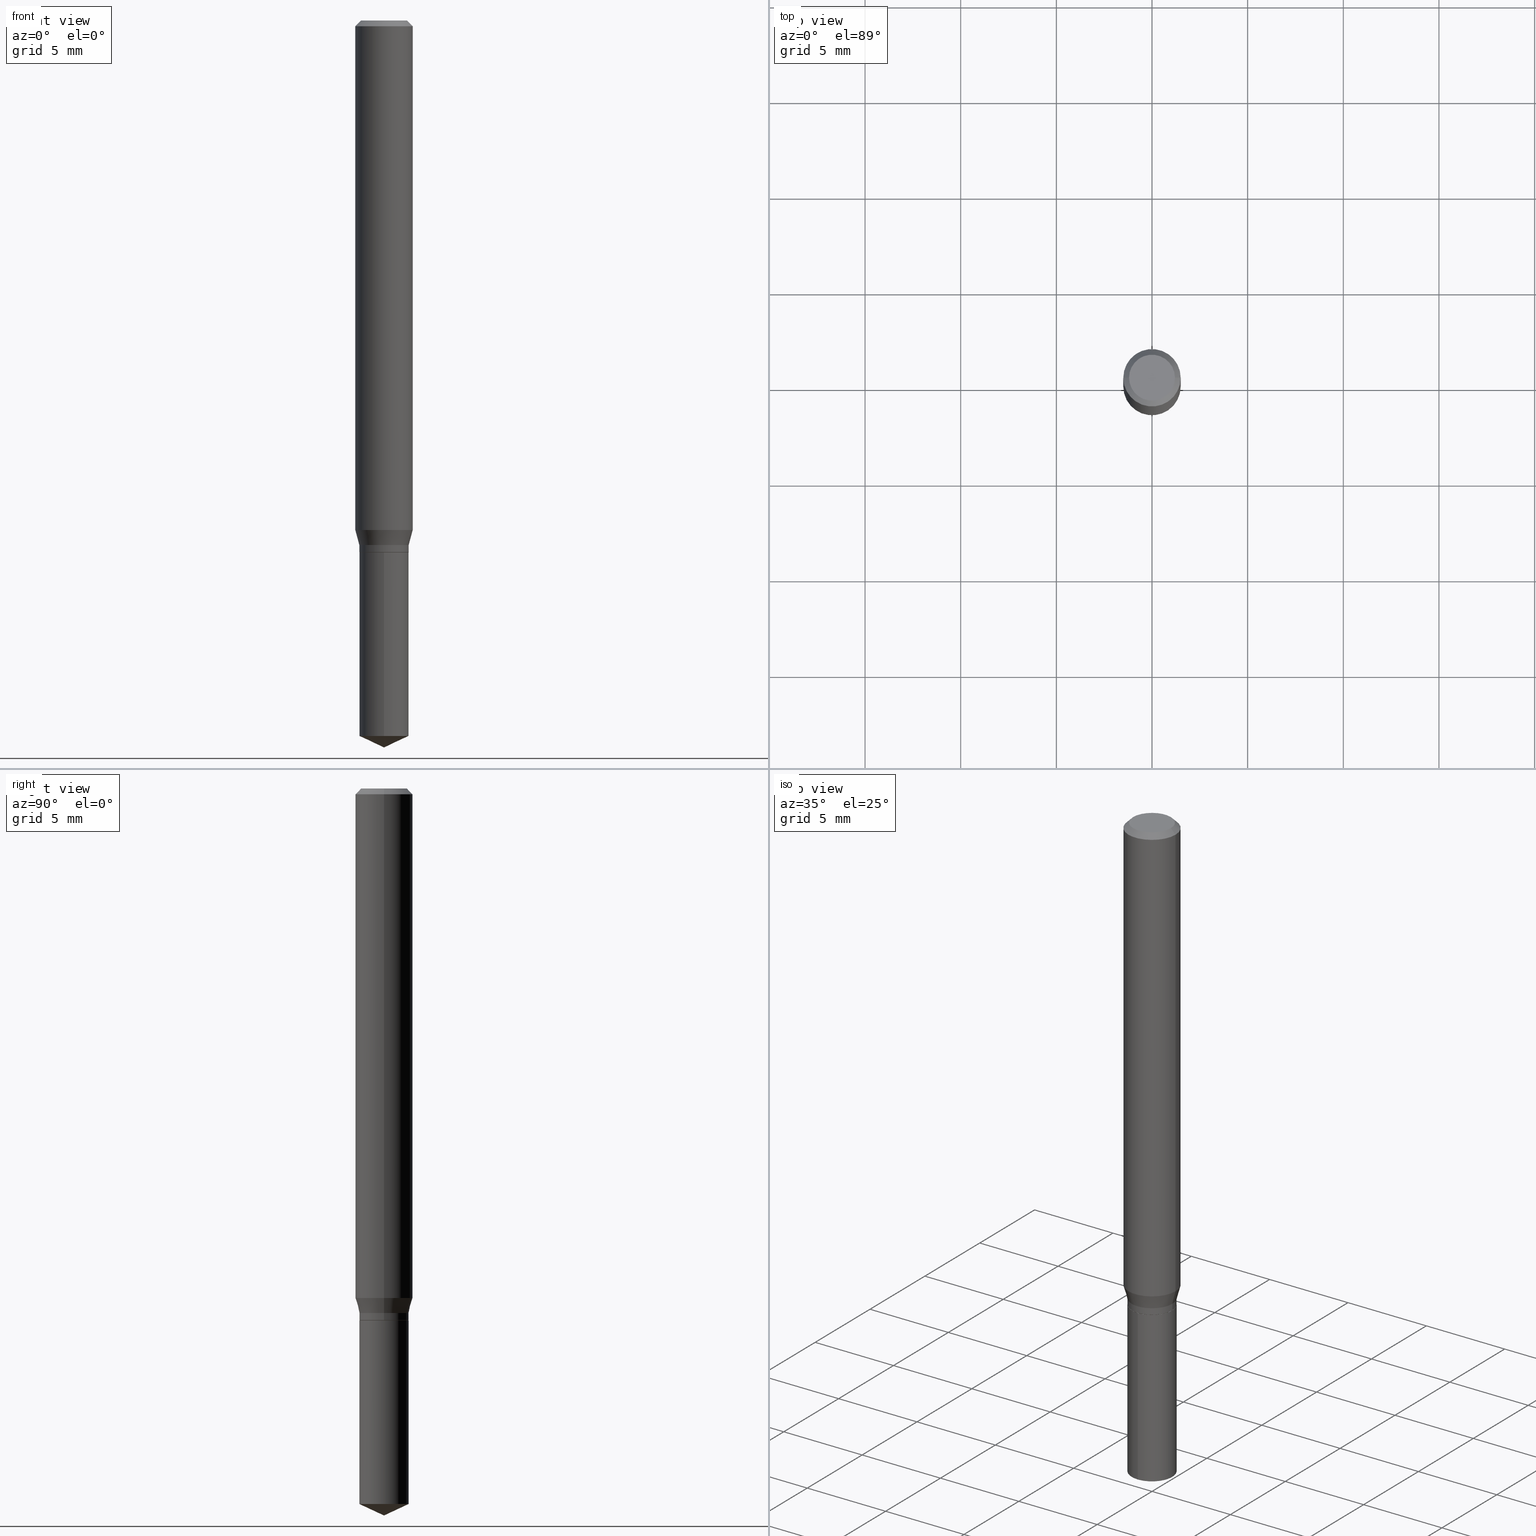
[diagram: canonical four-view strip — front | top / right | iso, engineering-drawing reading convention]
A machine part, canonical four-view strip (front | top / right | iso — engineering-drawing reading convention). The complete STEP part file that produces these views, byte-faithful:
ISO-10303-21;
HEADER;
FILE_DESCRIPTION (( 'STEP AP203' ),
    '1' );
FILE_NAME ('08014.STEP',
    '2024-04-24T08:52:15',
    ( '' ),
    ( '' ),
    'SwSTEP 2.0',
    'SolidWorks 2023',
    '' );
FILE_SCHEMA (( 'CONFIG_CONTROL_DESIGN' ));
ENDSEC;

DATA;
#1 = EDGE_CURVE ( 'NONE', #273, #327, #63, .T. ) ;
#2 = VERTEX_POINT ( 'NONE', #466 ) ;
#3 = FACE_OUTER_BOUND ( 'NONE', #199, .T. ) ;
#4 = CONICAL_SURFACE ( 'NONE', #329, 0.05029999999999999749, 0.7853981633972775267 ) ;
#5 = PERSON_AND_ORGANIZATION_ROLE ( 'classification_officer' ) ;
#6 = AXIS2_PLACEMENT_3D ( 'NONE', #459, #82, #121 ) ;
#7 = EDGE_LOOP ( 'NONE', ( #283, #122, #266, #473 ) ) ;
#8 = PERSON_AND_ORGANIZATION ( #376, #240 ) ;
#9 = ADVANCED_FACE ( 'NONE', ( #133 ), #4, .T. ) ;
#10 = DIRECTION ( 'NONE',  ( 1.000000000000000000, -6.982962677686265133E-15, 0.000000000000000000 ) ) ;
#11 = EDGE_LOOP ( 'NONE', ( #184, #53 ) ) ;
#12 = PERSON_AND_ORGANIZATION ( #376, #240 ) ;
#13 = AXIS2_PLACEMENT_3D ( 'NONE', #174, #480, #139 ) ;
#14 = ORIENTED_EDGE ( 'NONE', *, *, #268, .T. ) ;
#15 = FACE_OUTER_BOUND ( 'NONE', #41, .T. ) ;
#16 = APPROVAL_DATE_TIME ( #245, #145 ) ;
#17 = LINE ( 'NONE', #326, #171 ) ;
#18 = CC_DESIGN_PERSON_AND_ORGANIZATION_ASSIGNMENT ( #291, #440, ( #231 ) ) ;
#19 = COORDINATED_UNIVERSAL_TIME_OFFSET ( 5, 0, .BEHIND. ) ;
#20 = CARTESIAN_POINT ( 'NONE',  ( 2.639394482515617468E-29, -3.768355809013406698E-15, -1.079299999999999926 ) ) ;
#21 = AXIS2_PLACEMENT_3D ( 'NONE', #435, #100, #214 ) ;
#22 = VERTEX_POINT ( 'NONE', #277 ) ;
#23 = CIRCLE ( 'NONE', #218, 0.05079999999999999793 ) ;
#24 = CC_DESIGN_APPROVAL ( #134, ( #231 ) ) ;
#25 = CARTESIAN_POINT ( 'NONE',  ( 2.676565608369632355E-29, -3.821426325363822773E-15, -1.094500000000000028 ) ) ;
#26 = EDGE_CURVE ( 'NONE', #2, #153, #392, .T. ) ;
#27 = ORIENTED_EDGE ( 'NONE', *, *, #212, .F. ) ;
#28 = ORIENTED_EDGE ( 'NONE', *, *, #414, .F. ) ;
#29 = UNCERTAINTY_MEASURE_WITH_UNIT (LENGTH_MEASURE( 1.000000000000000082E-05 ), #115, 'distance_accuracy_value', 'NONE');
#30 = ORIENTED_EDGE ( 'NONE', *, *, #216, .F. ) ;
#31 = AXIS2_PLACEMENT_3D ( 'NONE', #477, #297, #101 ) ;
#32 = DIRECTION ( 'NONE',  ( -2.445468806185136597E-29, 3.491481338843145583E-15, 1.000000000000000000 ) ) ;
#33 = DIRECTION ( 'NONE',  ( -2.445468806185136597E-29, 3.491481338843145583E-15, 1.000000000000000000 ) ) ;
#34 = ADVANCED_FACE ( 'NONE', ( #15 ), #453, .T. ) ;
#35 = CARTESIAN_POINT ( 'NONE',  ( 0.05904999999999999832, -4.535783407291118600E-16, -0.01181000000000007565 ) ) ;
#36 = ORIENTED_EDGE ( 'NONE', *, *, #353, .T. ) ;
#37 = VECTOR ( 'NONE', #383, 39.37007874015748143 ) ;
#38 =( LENGTH_UNIT ( ) NAMED_UNIT ( * ) SI_UNIT ( $, .METRE. ) );
#39 = EDGE_CURVE ( 'NONE', #352, #237, #17, .T. ) ;
#40 = ORIENTED_EDGE ( 'NONE', *, *, #349, .T. ) ;
#41 = EDGE_LOOP ( 'NONE', ( #305, #147, #388 ) ) ;
#42 = FACE_OUTER_BOUND ( 'NONE', #472, .T. ) ;
#43 = PRODUCT_RELATED_PRODUCT_CATEGORY ( 'detail', '', ( #457 ) ) ;
#44 =( NAMED_UNIT ( * ) PLANE_ANGLE_UNIT ( ) SI_UNIT ( $, .RADIAN. ) );
#45 = CLOSED_SHELL ( 'NONE', ( #9, #186, #69, #83, #341, #321, #282, #126, #301, #444, #93, #310 ) ) ;
#46 = AXIS2_PLACEMENT_3D ( 'NONE', #64, #406, #334 ) ;
#47 = DIRECTION ( 'NONE',  ( 1.000000000000000000, -6.982962677686267499E-15, 0.000000000000000000 ) ) ;
#48 = PERSON_AND_ORGANIZATION ( #376, #240 ) ;
#49 = DESIGN_CONTEXT ( 'detailed design', #471, 'design' ) ;
#50 = DIRECTION ( 'NONE',  ( -2.445468806185136597E-29, 3.491481338843145583E-15, 1.000000000000000000 ) ) ;
#51 = VECTOR ( 'NONE', #476, 39.37007874015748143 ) ;
#52 = VECTOR ( 'NONE', #263, 39.37007874015748143 ) ;
#53 = ORIENTED_EDGE ( 'NONE', *, *, #212, .T. ) ;
#54 = EDGE_CURVE ( 'NONE', #425, #146, #163, .T. ) ;
#55 = EDGE_LOOP ( 'NONE', ( #447, #160, #322, #417 ) ) ;
#56 = APPROVAL_ROLE ( '' ) ;
#57 = EDGE_CURVE ( 'NONE', #380, #327, #92, .T. ) ;
#58 = DIRECTION ( 'NONE',  ( 1.000000000000000000, -6.982962677686267499E-15, 0.000000000000000000 ) ) ;
#59 = DIRECTION ( 'NONE',  ( -2.445468806185136597E-29, 3.491481338843145583E-15, 1.000000000000000000 ) ) ;
#60 = CC_DESIGN_PERSON_AND_ORGANIZATION_ASSIGNMENT ( #48, #5, ( #114 ) ) ;
#61 = VECTOR ( 'NONE', #250, 39.37007874015748143 ) ;
#62 = CONICAL_SURFACE ( 'NONE', #162, 0.05029999999999999749, 0.7853981633972775267 ) ;
#63 = LINE ( 'NONE', #432, #51 ) ;
#64 = CARTESIAN_POINT ( 'NONE',  ( 0.000000000000000000, 0.000000000000000000, 0.000000000000000000 ) ) ;
#65 = CARTESIAN_POINT ( 'NONE',  ( 3.600732822747846829E-29, -5.140902884622764989E-15, -1.472411570965726391 ) ) ;
#66 = DIRECTION ( 'NONE',  ( -2.445458899330790108E-29, 3.491495526022433599E-15, 1.000000000000000000 ) ) ;
#67 = VERTEX_POINT ( 'NONE', #393 ) ;
#68 = CARTESIAN_POINT ( 'NONE',  ( -0.05905000000000013016, -3.241279641107575453E-15, -1.048510580837556105 ) ) ;
#69 = ADVANCED_FACE ( 'NONE', ( #478 ), #468, .T. ) ;
#70 = DIRECTION ( 'NONE',  ( 1.000000000000000000, -6.982962677686266711E-15, 0.000000000000000000 ) ) ;
#71 = CONICAL_SURFACE ( 'NONE', #150, 84.42940631927510253, 1.134464013796319337 ) ;
#72 = DIRECTION ( 'NONE',  ( 1.000000000000000000, -6.982962677686267499E-15, 0.000000000000000000 ) ) ;
#73 = LINE ( 'NONE', #149, #345 ) ;
#74 = DIRECTION ( 'NONE',  ( 2.438088387897960049E-29, -3.491481338843145188E-15, -1.000000000000000000 ) ) ;
#75 = LINE ( 'NONE', #111, #52 ) ;
#76 = PRODUCT_DEFINITION_SHAPE ( 'NONE', 'NONE',  #233 ) ;
#77 = ORIENTED_EDGE ( 'NONE', *, *, #451, .F. ) ;
#78 = AXIS2_PLACEMENT_3D ( 'NONE', #319, #59, #401 ) ;
#79 = AXIS2_PLACEMENT_3D ( 'NONE', #439, #485, #364 ) ;
#80 = CARTESIAN_POINT ( 'NONE',  ( 2.676565608369632355E-29, -3.821426325363822773E-15, -1.094500000000000028 ) ) ;
#81 = APPROVAL ( #236, 'UNSPECIFIED' ) ;
#82 = DIRECTION ( 'NONE',  ( -2.445468806185136597E-29, 3.491481338843145583E-15, 1.000000000000000000 ) ) ;
#83 = ADVANCED_FACE ( 'NONE', ( #166 ), #187, .T. ) ;
#84 = VECTOR ( 'NONE', #286, 39.37007874015748854 ) ;
#85 = AXIS2_PLACEMENT_3D ( 'NONE', #304, #420, #340 ) ;
#86 = DATE_AND_TIME ( #311, #190 ) ;
#87 = VECTOR ( 'NONE', #141, 39.37007874015748854 ) ;
#88 = ORIENTED_EDGE ( 'NONE', *, *, #220, .T. ) ;
#89 = DIRECTION ( 'NONE',  ( 1.000000000000000000, 0.000000000000000000, 0.000000000000000000 ) ) ;
#90 = CALENDAR_DATE ( 2024, 24, 4 ) ;
#91 = CARTESIAN_POINT ( 'NONE',  ( 0.04724000000000000421, -3.852183633974369345E-16, -3.380025165621689721E-19 ) ) ;
#92 = LINE ( 'NONE', #202, #238 ) ;
#93 = ADVANCED_FACE ( 'NONE', ( #399 ), #355, .F. ) ;
#94 = CARTESIAN_POINT ( 'NONE',  ( 0.05905000000000006771, -4.123439461173745257E-16, 2.879382386107503723E-30 ) ) ;
#95 = APPLICATION_PROTOCOL_DEFINITION ( 'international standard', 'config_control_design', 1994, #284 ) ;
#96 =( GEOMETRIC_REPRESENTATION_CONTEXT ( 3 ) GLOBAL_UNCERTAINTY_ASSIGNED_CONTEXT ( ( #29 ) ) GLOBAL_UNIT_ASSIGNED_CONTEXT ( ( #115, #44, #416 ) ) REPRESENTATION_CONTEXT ( 'NONE', 'WORKASPACE' ) );
#97 = CARTESIAN_POINT ( 'NONE',  ( 2.676565608369632355E-29, -3.821426325363822773E-15, -1.094500000000000028 ) ) ;
#98 = CALENDAR_DATE ( 2024, 24, 4 ) ;
#99 = EDGE_CURVE ( 'NONE', #237, #67, #315, .T. ) ;
#100 = DIRECTION ( 'NONE',  ( -2.445468806185136597E-29, 3.491481338843145583E-15, 1.000000000000000000 ) ) ;
#101 = DIRECTION ( 'NONE',  ( -6.982962677686265922E-15, -1.000000000000000000, 2.688826765417582082E-15 ) ) ;
#102 = FACE_OUTER_BOUND ( 'NONE', #475, .T. ) ;
#103 = DIRECTION ( 'NONE',  ( 1.000000000000000000, -6.982962677686267499E-15, 0.000000000000000000 ) ) ;
#104 = AXIS2_PLACEMENT_3D ( 'NONE', #374, #455, #228 ) ;
#105 = APPROVAL_PERSON_ORGANIZATION ( #462, #81, #204 ) ;
#106 = FACE_OUTER_BOUND ( 'NONE', #55, .T. ) ;
#107 = ORIENTED_EDGE ( 'NONE', *, *, #99, .T. ) ;
#108 = CARTESIAN_POINT ( 'NONE',  ( 3.658651059288794515E-29, -5.223626456482161457E-15, -1.496099999999999985 ) ) ;
#109 = EDGE_CURVE ( 'NONE', #22, #2, #438, .T. ) ;
#110 = LINE ( 'NONE', #260, #307 ) ;
#111 = CARTESIAN_POINT ( 'NONE',  ( -0.05029999999999999749, -3.464023329276492693E-15, -1.094500000000000028 ) ) ;
#112 = EDGE_LOOP ( 'NONE', ( #40, #107, #28, #366 ) ) ;
#113 = AXIS2_PLACEMENT_3D ( 'NONE', #209, #427, #450 ) ;
#114 = SECURITY_CLASSIFICATION ( '', '', #208 ) ;
#115 =( CONVERSION_BASED_UNIT ( 'INCH', #123 ) LENGTH_UNIT ( ) NAMED_UNIT ( #299 ) );
#116 = CARTESIAN_POINT ( 'NONE',  ( -0.05079999999999999793, -3.433062487087773006E-15, -1.079299999999999926 ) ) ;
#117 = EDGE_CURVE ( 'NONE', #22, #195, #217, .T. ) ;
#118 = PLANE ( 'NONE',  #196 ) ;
#119 = EDGE_LOOP ( 'NONE', ( #27, #428, #130, #350 ) ) ;
#120 = CIRCLE ( 'NONE', #346, 0.05905000000000013016 ) ;
#121 = DIRECTION ( 'NONE',  ( 1.000000000000000000, -6.982962677686266711E-15, 0.000000000000000000 ) ) ;
#122 = ORIENTED_EDGE ( 'NONE', *, *, #170, .F. ) ;
#123 = LENGTH_MEASURE_WITH_UNIT ( LENGTH_MEASURE( 0.02539999999999999897 ), #38 );
#124 = CARTESIAN_POINT ( 'NONE',  ( -3.547345040264262045E-16, -0.05080000000000513272, -1.472411570965725947 ) ) ;
#125 = DIRECTION ( 'NONE',  ( -6.982962677686268288E-15, -1.000000000000000000, 3.520397390770421921E-15 ) ) ;
#126 = ADVANCED_FACE ( 'NONE', ( #102 ), #252, .T. ) ;
#127 = APPROVAL_STATUS ( 'not_yet_approved' ) ;
#128 = DIRECTION ( 'NONE',  ( -2.445468806185136877E-29, 3.491481338843145188E-15, 1.000000000000000000 ) ) ;
#129 = ORIENTED_EDGE ( 'NONE', *, *, #99, .F. ) ;
#130 = ORIENTED_EDGE ( 'NONE', *, *, #407, .T. ) ;
#131 = DATE_AND_TIME ( #469, #331 ) ;
#132 = EDGE_CURVE ( 'NONE', #276, #146, #338, .T. ) ;
#133 = FACE_OUTER_BOUND ( 'NONE', #415, .T. ) ;
#134 = APPROVAL ( #429, 'UNSPECIFIED' ) ;
#135 = VECTOR ( 'NONE', #343, 39.37007874015748143 ) ;
#136 = CARTESIAN_POINT ( 'NONE',  ( -9.261924752013118283E-28, 1.322368428517963298E-13, 37.87397874015748300 ) ) ;
#137 = DIRECTION ( 'NONE',  ( 2.445468806185136597E-29, -3.491481338843145583E-15, -1.000000000000000000 ) ) ;
#138 = ORIENTED_EDGE ( 'NONE', *, *, #384, .F. ) ;
#139 = DIRECTION ( 'NONE',  ( 1.000000000000000000, -6.982962677686266711E-15, 4.876176775795935793E-29 ) ) ;
#140 = ORIENTED_EDGE ( 'NONE', *, *, #353, .F. ) ;
#141 = DIRECTION ( 'NONE',  ( -0.2588190451025211281, 5.211531920934547886E-15, 0.9659258262890679791 ) ) ;
#142 = AXIS2_PLACEMENT_3D ( 'NONE', #136, #246, #125 ) ;
#143 = CIRCLE ( 'NONE', #419, 0.05029999999999999749 ) ;
#144 = VERTEX_POINT ( 'NONE', #482 ) ;
#145 = APPROVAL ( #127, 'UNSPECIFIED' ) ;
#146 = VERTEX_POINT ( 'NONE', #298 ) ;
#147 = ORIENTED_EDGE ( 'NONE', *, *, #39, .T. ) ;
#148 = EDGE_CURVE ( 'NONE', #229, #144, #110, .T. ) ;
#149 = CARTESIAN_POINT ( 'NONE',  ( 0.05904999999999999832, -4.463468013801466955E-16, -0.01181000000000007565 ) ) ;
#150 = AXIS2_PLACEMENT_3D ( 'NONE', #271, #418, #191 ) ;
#151 = VERTEX_POINT ( 'NONE', #257 ) ;
#152 = EDGE_LOOP ( 'NONE', ( #88, #461, #405, #206 ) ) ;
#153 = VERTEX_POINT ( 'NONE', #35 ) ;
#154 = AXIS2_PLACEMENT_3D ( 'NONE', #408, #409, #70 ) ;
#155 = CIRCLE ( 'NONE', #6, 0.05904999999999999832 ) ;
#156 = CARTESIAN_POINT ( 'NONE',  ( 4.132873053354867254E-48, -5.900647395337818946E-34, -1.690012582823346072E-19 ) ) ;
#157 = SHAPE_DEFINITION_REPRESENTATION ( #76, #222 ) ;
#158 = DIRECTION ( 'NONE',  ( 1.000000000000000000, -6.982962677686266711E-15, 4.876185090822587894E-29 ) ) ;
#159 = EDGE_CURVE ( 'NONE', #327, #153, #368, .T. ) ;
#160 = ORIENTED_EDGE ( 'NONE', *, *, #451, .T. ) ;
#161 = CLOSED_SHELL ( 'NONE', ( #239, #34, #391, #272, #487 ) ) ;
#162 = AXIS2_PLACEMENT_3D ( 'NONE', #25, #32, #251 ) ;
#163 = LINE ( 'NONE', #207, #442 ) ;
#164 = PERSON_AND_ORGANIZATION ( #376, #240 ) ;
#165 = EDGE_LOOP ( 'NONE', ( #484, #77 ) ) ;
#166 = FACE_OUTER_BOUND ( 'NONE', #479, .T. ) ;
#167 = EDGE_CURVE ( 'NONE', #230, #153, #73, .T. ) ;
#168 = CARTESIAN_POINT ( 'NONE',  ( 2.564099918393302910E-29, -3.660855126573914946E-15, -1.048510580837556105 ) ) ;
#169 = DIRECTION ( 'NONE',  ( 1.000000000000000000, -6.982962677686265922E-15, 4.876176775795935793E-29 ) ) ;
#170 = EDGE_CURVE ( 'NONE', #380, #230, #431, .T. ) ;
#171 = VECTOR ( 'NONE', #211, 39.37007874015748143 ) ;
#172 = AXIS2_PLACEMENT_3D ( 'NONE', #356, #241, #89 ) ;
#173 = DIRECTION ( 'NONE',  ( -2.445468806185136597E-29, 3.491481338843145583E-15, 1.000000000000000000 ) ) ;
#174 = CARTESIAN_POINT ( 'NONE',  ( 0.000000000000000000, 0.000000000000000000, 0.000000000000000000 ) ) ;
#175 = ORIENTED_EDGE ( 'NONE', *, *, #109, .T. ) ;
#176 = ORIENTED_EDGE ( 'NONE', *, *, #109, .F. ) ;
#177 = FACE_OUTER_BOUND ( 'NONE', #465, .T. ) ;
#178 = EDGE_CURVE ( 'NONE', #151, #276, #75, .T. ) ;
#179 = DIRECTION ( 'NONE',  ( -2.445468806185136597E-29, 3.491481338843145583E-15, 1.000000000000000000 ) ) ;
#180 = ORIENTED_EDGE ( 'NONE', *, *, #148, .T. ) ;
#181 = DIRECTION ( 'NONE',  ( -2.445458899330790108E-29, 3.491495526022433205E-15, 1.000000000000000000 ) ) ;
#182 = EDGE_LOOP ( 'NONE', ( #294, #396, #335, #215 ) ) ;
#183 = CARTESIAN_POINT ( 'NONE',  ( 2.639394482515617468E-29, -3.768355809013406698E-15, -1.079299999999999926 ) ) ;
#184 = ORIENTED_EDGE ( 'NONE', *, *, #170, .T. ) ;
#185 = EDGE_CURVE ( 'NONE', #146, #276, #23, .T. ) ;
#186 = ADVANCED_FACE ( 'NONE', ( #303 ), #254, .T. ) ;
#187 = CONICAL_SURFACE ( 'NONE', #386, 0.05079999999999999793, 0.2617993877991498519 ) ;
#188 = CIRCLE ( 'NONE', #330, 0.05905000000000013016 ) ;
#189 = ORIENTED_EDGE ( 'NONE', *, *, #259, .T. ) ;
#190 = LOCAL_TIME ( 4, 52, 15.00000000000000000, #312 ) ;
#191 = DIRECTION ( 'NONE',  ( -6.982962677686268288E-15, -1.000000000000000000, 3.520397390770421921E-15 ) ) ;
#192 = ORIENTED_EDGE ( 'NONE', *, *, #117, .T. ) ;
#193 = CARTESIAN_POINT ( 'NONE',  ( -0.04724000000000000421, 3.504923541997677355E-16, -3.380025165670481712E-19 ) ) ;
#194 = CC_DESIGN_PERSON_AND_ORGANIZATION_ASSIGNMENT ( #197, #348, ( #231 ) ) ;
#195 = VERTEX_POINT ( 'NONE', #116 ) ;
#196 = AXIS2_PLACEMENT_3D ( 'NONE', #489, #235, #379 ) ;
#197 = PERSON_AND_ORGANIZATION ( #376, #240 ) ;
#198 = COORDINATED_UNIVERSAL_TIME_OFFSET ( 5, 0, .BEHIND. ) ;
#199 = EDGE_LOOP ( 'NONE', ( #382, #410, #385 ) ) ;
#200 = PERSON_AND_ORGANIZATION_ROLE ( 'design_owner' ) ;
#201 = ORIENTED_EDGE ( 'NONE', *, *, #470, .T. ) ;
#202 = CARTESIAN_POINT ( 'NONE',  ( -0.05904999999999999832, 3.711095515056362547E-16, -0.01181000000000007565 ) ) ;
#203 = VECTOR ( 'NONE', #323, 39.37007874015748143 ) ;
#204 = APPROVAL_ROLE ( '' ) ;
#205 = LOCAL_TIME ( 4, 52, 15.00000000000000000, #434 ) ;
#206 = ORIENTED_EDGE ( 'NONE', *, *, #26, .F. ) ;
#207 = CARTESIAN_POINT ( 'NONE',  ( 0.05029999999999999749, -4.172669348051441913E-15, -1.094500000000000028 ) ) ;
#208 = SECURITY_CLASSIFICATION_LEVEL ( 'unclassified' ) ;
#209 = CARTESIAN_POINT ( 'NONE',  ( 2.676565608369631794E-29, -3.821426325363822773E-15, -1.094499999999999806 ) ) ;
#210 = ORIENTED_EDGE ( 'NONE', *, *, #26, .T. ) ;
#211 = DIRECTION ( 'NONE',  ( 6.439704144417040608E-15, 0.9063077870366536004, 0.4226182617406916142 ) ) ;
#212 = EDGE_CURVE ( 'NONE', #230, #380, #224, .T. ) ;
#213 = DIRECTION ( 'NONE',  ( -2.445468806185136597E-29, 3.491481338843145583E-15, 1.000000000000000000 ) ) ;
#214 = DIRECTION ( 'NONE',  ( 1.000000000000000000, -6.982962677686267499E-15, 0.000000000000000000 ) ) ;
#215 = ORIENTED_EDGE ( 'NONE', *, *, #470, .F. ) ;
#216 = EDGE_CURVE ( 'NONE', #195, #22, #394, .T. ) ;
#217 = CIRCLE ( 'NONE', #21, 0.05079999999999999793 ) ;
#218 = AXIS2_PLACEMENT_3D ( 'NONE', #226, #413, #264 ) ;
#219 = DIRECTION ( 'NONE',  ( 1.000000000000000000, -6.982962677686267499E-15, 0.000000000000000000 ) ) ;
#220 = EDGE_CURVE ( 'NONE', #2, #273, #188, .T. ) ;
#221 = ORIENTED_EDGE ( 'NONE', *, *, #414, .T. ) ;
#222 = ADVANCED_BREP_SHAPE_REPRESENTATION ( '08014', ( #423, #424, #172 ), #96 ) ;
#223 = AXIS2_PLACEMENT_3D ( 'NONE', #328, #33, #452 ) ;
#224 = CIRCLE ( 'NONE', #302, 0.04724000000000000421 ) ;
#225 = EDGE_CURVE ( 'NONE', #276, #195, #467, .T. ) ;
#226 = CARTESIAN_POINT ( 'NONE',  ( 2.675342873966538993E-29, -3.819680584694400481E-15, -1.093999999999999861 ) ) ;
#227 = CARTESIAN_POINT ( 'NONE',  ( 3.658651059288795076E-29, -5.223626456482161457E-15, -1.496099999999999985 ) ) ;
#228 = DIRECTION ( 'NONE',  ( -1.000000000000000000, 6.982962677686266711E-15, 0.000000000000000000 ) ) ;
#229 = VERTEX_POINT ( 'NONE', #124 ) ;
#230 = VERTEX_POINT ( 'NONE', #91 ) ;
#231 = PRODUCT_DEFINITION_FORMATION_WITH_SPECIFIED_SOURCE ( 'ANY', '', #457, .NOT_KNOWN. ) ;
#232 = DIRECTION ( 'NONE',  ( 1.000000000000000000, -6.982962677686265133E-15, 0.000000000000000000 ) ) ;
#233 = PRODUCT_DEFINITION ( 'UNKNOWN', '', #231, #49 ) ;
#234 = LINE ( 'NONE', #265, #37 ) ;
#235 = DIRECTION ( 'NONE',  ( 2.445458899330789267E-29, -3.491495526022433599E-15, -1.000000000000000000 ) ) ;
#236 = APPROVAL_STATUS ( 'not_yet_approved' ) ;
#237 = VERTEX_POINT ( 'NONE', #243 ) ;
#238 = VECTOR ( 'NONE', #244, 39.37007874015748143 ) ;
#239 = ADVANCED_FACE ( 'NONE', ( #430 ), #279, .T. ) ;
#240 = ORGANIZATION ( 'UNSPECIFIED', 'UNSPECIFIED', '' ) ;
#241 = DIRECTION ( 'NONE',  ( 0.000000000000000000, 0.000000000000000000, 1.000000000000000000 ) ) ;
#242 = APPROVAL_DATE_TIME ( #390, #81 ) ;
#243 = CARTESIAN_POINT ( 'NONE',  ( 3.609557097661668715E-16, 0.05079999999999484234, -1.472411570965726613 ) ) ;
#244 = DIRECTION ( 'NONE',  ( -0.7071067811865452413, 2.468850131082233000E-15, -0.7071067811865497932 ) ) ;
#245 = DATE_AND_TIME ( #426, #433 ) ;
#246 = DIRECTION ( 'NONE',  ( -2.445458899330790108E-29, 3.491495526022433205E-15, 1.000000000000000000 ) ) ;
#247 = CC_DESIGN_DATE_AND_TIME_ASSIGNMENT ( #86, #275, ( #114 ) ) ;
#248 = ORIENTED_EDGE ( 'NONE', *, *, #54, .F. ) ;
#249 = DATE_AND_TIME ( #98, #205 ) ;
#250 = DIRECTION ( 'NONE',  ( -2.445468806185136877E-29, 3.491481338843145188E-15, 1.000000000000000000 ) ) ;
#251 = DIRECTION ( 'NONE',  ( 1.000000000000000000, -6.982962677686267499E-15, 0.000000000000000000 ) ) ;
#252 = CYLINDRICAL_SURFACE ( 'NONE', #354, 0.05905000000000006771 ) ;
#253 = CARTESIAN_POINT ( 'NONE',  ( -0.05904999999999999832, -1.431469275126486055E-15, -0.01181000000000007565 ) ) ;
#254 = CONICAL_SURFACE ( 'NONE', #104, 0.05904999999999999832, 0.7853981633974450594 ) ;
#255 = ORIENTED_EDGE ( 'NONE', *, *, #185, .F. ) ;
#256 = CYLINDRICAL_SURFACE ( 'NONE', #46, 0.05079999999999999793 ) ;
#257 = CARTESIAN_POINT ( 'NONE',  ( -0.05029999999999999749, -3.461374102102381492E-15, -1.094500000000000028 ) ) ;
#258 = LINE ( 'NONE', #448, #87 ) ;
#259 = EDGE_CURVE ( 'NONE', #237, #229, #293, .T. ) ;
#260 = CARTESIAN_POINT ( 'NONE',  ( -3.547345040264355229E-16, -0.05080000000000382127, -1.094499999999999806 ) ) ;
#261 = ORIENTED_EDGE ( 'NONE', *, *, #384, .T. ) ;
#262 = FACE_OUTER_BOUND ( 'NONE', #378, .T. ) ;
#263 = DIRECTION ( 'NONE',  ( -0.7071067811864267805, 7.493145998869918709E-15, 0.7071067811866682540 ) ) ;
#264 = DIRECTION ( 'NONE',  ( 1.000000000000000000, -6.982962677686267499E-15, 0.000000000000000000 ) ) ;
#265 = CARTESIAN_POINT ( 'NONE',  ( 0.05079999999999999793, -3.547345040264623442E-16, 2.477097802104335321E-30 ) ) ;
#266 = ORIENTED_EDGE ( 'NONE', *, *, #57, .T. ) ;
#267 = DIRECTION ( 'NONE',  ( -2.445468806185136597E-29, 3.491481338843145583E-15, 1.000000000000000000 ) ) ;
#268 = EDGE_CURVE ( 'NONE', #195, #273, #258, .T. ) ;
#269 = CIRCLE ( 'NONE', #362, 0.05079999999999999793 ) ;
#270 = ORIENTED_EDGE ( 'NONE', *, *, #268, .F. ) ;
#271 = CARTESIAN_POINT ( 'NONE',  ( -9.261924752013118283E-28, 1.322368428517963298E-13, 37.87397874015748300 ) ) ;
#272 = ADVANCED_FACE ( 'NONE', ( #177 ), #367, .T. ) ;
#273 = VERTEX_POINT ( 'NONE', #68 ) ;
#274 = AXIS2_PLACEMENT_3D ( 'NONE', #183, #292, #103 ) ;
#275 = DATE_TIME_ROLE ( 'classification_date' ) ;
#276 = VERTEX_POINT ( 'NONE', #481 ) ;
#277 = CARTESIAN_POINT ( 'NONE',  ( 0.05079999999999999793, -4.123090313039868845E-15, -1.079299999999999926 ) ) ;
#278 = COORDINATED_UNIVERSAL_TIME_OFFSET ( 5, 0, .BEHIND. ) ;
#279 = CYLINDRICAL_SURFACE ( 'NONE', #113, 0.05079999999999999793 ) ;
#280 = CARTESIAN_POINT ( 'NONE',  ( 3.609557097661576024E-16, 0.05079999999999617460, -1.094500000000000028 ) ) ;
#281 = DATE_TIME_ROLE ( 'creation_date' ) ;
#282 = ADVANCED_FACE ( 'NONE', ( #262 ), #488, .T. ) ;
#283 = ORIENTED_EDGE ( 'NONE', *, *, #167, .F. ) ;
#284 = APPLICATION_CONTEXT ( 'configuration controlled 3d designs of mechanical parts and assemblies' ) ;
#285 = CIRCLE ( 'NONE', #464, 0.05029999999999999749 ) ;
#286 = DIRECTION ( 'NONE',  ( 0.2588190451025211281, 1.565188264969622954E-15, 0.9659258262890679791 ) ) ;
#287 = ORIENTED_EDGE ( 'NONE', *, *, #333, .T. ) ;
#288 = CYLINDRICAL_SURFACE ( 'NONE', #13, 0.05079999999999999793 ) ;
#289 = CARTESIAN_POINT ( 'NONE',  ( 6.011071908982761480E-30, -6.793600906939902471E-15, -1.094500000000000028 ) ) ;
#290 = CARTESIAN_POINT ( 'NONE',  ( 2.676565608369632355E-29, -3.821426325363822773E-15, -1.094500000000000028 ) ) ;
#291 = PERSON_AND_ORGANIZATION ( #376, #240 ) ;
#292 = DIRECTION ( 'NONE',  ( -2.445468806185136597E-29, 3.491481338843145583E-15, 1.000000000000000000 ) ) ;
#293 = CIRCLE ( 'NONE', #79, 0.05079999999999999793 ) ;
#294 = ORIENTED_EDGE ( 'NONE', *, *, #185, .T. ) ;
#295 = DIRECTION ( 'NONE',  ( 1.000000000000000000, -6.982962677686267499E-15, 0.000000000000000000 ) ) ;
#296 = ORIENTED_EDGE ( 'NONE', *, *, #178, .T. ) ;
#297 = DIRECTION ( 'NONE',  ( -2.445458899330790108E-29, 3.491495526022433205E-15, 1.000000000000000000 ) ) ;
#298 = CARTESIAN_POINT ( 'NONE',  ( 0.05079999999999999793, -4.174415088720863417E-15, -1.093999999999999861 ) ) ;
#299 = DIMENSIONAL_EXPONENTS ( 1.000000000000000000, 0.000000000000000000, 0.000000000000000000, 0.000000000000000000, 0.000000000000000000, 0.000000000000000000, 0.000000000000000000 ) ;
#300 = CARTESIAN_POINT ( 'NONE',  ( 2.564099918393302910E-29, -3.660855126573914946E-15, -1.048510580837556105 ) ) ;
#301 = ADVANCED_FACE ( 'NONE', ( #436 ), #308, .T. ) ;
#302 = AXIS2_PLACEMENT_3D ( 'NONE', #377, #404, #158 ) ;
#303 = FACE_OUTER_BOUND ( 'NONE', #119, .T. ) ;
#304 = CARTESIAN_POINT ( 'NONE',  ( 2.676565608369631794E-29, -3.821426325363822773E-15, -1.094499999999999806 ) ) ;
#305 = ORIENTED_EDGE ( 'NONE', *, *, #395, .F. ) ;
#306 = DIRECTION ( 'NONE',  ( -6.982962677686265922E-15, -1.000000000000000000, 2.688826765417582082E-15 ) ) ;
#307 = VECTOR ( 'NONE', #66, 39.37007874015748143 ) ;
#308 = CONICAL_SURFACE ( 'NONE', #402, 0.05904999999999999832, 0.7853981633974450594 ) ;
#309 = DIRECTION ( 'NONE',  ( -1.000000000000000000, 6.982962677686265922E-15, -4.876176775795935793E-29 ) ) ;
#310 = ADVANCED_FACE ( 'NONE', ( #106 ), #62, .T. ) ;
#311 = CALENDAR_DATE ( 2024, 24, 4 ) ;
#312 = COORDINATED_UNIVERSAL_TIME_OFFSET ( 5, 0, .BEHIND. ) ;
#313 = CIRCLE ( 'NONE', #339, 0.05079999999999999793 ) ;
#314 = APPROVAL_PERSON_ORGANIZATION ( #320, #134, #474 ) ;
#315 = LINE ( 'NONE', #280, #203 ) ;
#316 = CC_DESIGN_PERSON_AND_ORGANIZATION_ASSIGNMENT ( #8, #200, ( #457 ) ) ;
#317 = PERSON_AND_ORGANIZATION_ROLE ( 'creator' ) ;
#318 = CARTESIAN_POINT ( 'NONE',  ( -0.05079999999999999793, 3.609557097661308797E-16, -2.498819025849492155E-30 ) ) ;
#319 = CARTESIAN_POINT ( 'NONE',  ( 0.000000000000000000, 0.000000000000000000, 0.000000000000000000 ) ) ;
#320 = PERSON_AND_ORGANIZATION ( #376, #240 ) ;
#321 = ADVANCED_FACE ( 'NONE', ( #400 ), #288, .T. ) ;
#322 = ORIENTED_EDGE ( 'NONE', *, *, #54, .T. ) ;
#323 = DIRECTION ( 'NONE',  ( -2.445458899330790108E-29, 3.491495526022433599E-15, 1.000000000000000000 ) ) ;
#324 = CC_DESIGN_APPROVAL ( #81, ( #114 ) ) ;
#325 = CC_DESIGN_DATE_AND_TIME_ASSIGNMENT ( #131, #281, ( #233 ) ) ;
#326 = CARTESIAN_POINT ( 'NONE',  ( 3.658672935554494692E-29, -5.223595400746700193E-15, -1.496099999999999985 ) ) ;
#327 = VERTEX_POINT ( 'NONE', #253 ) ;
#328 = CARTESIAN_POINT ( 'NONE',  ( 8.265746106709734507E-48, -1.180129479067563789E-33, -3.380025165646692144E-19 ) ) ;
#329 = AXIS2_PLACEMENT_3D ( 'NONE', #97, #173, #58 ) ;
#330 = AXIS2_PLACEMENT_3D ( 'NONE', #168, #213, #10 ) ;
#331 = LOCAL_TIME ( 4, 52, 15.00000000000000000, #19 ) ;
#332 = ORIENTED_EDGE ( 'NONE', *, *, #132, .T. ) ;
#333 = EDGE_CURVE ( 'NONE', #425, #151, #285, .T. ) ;
#334 = DIRECTION ( 'NONE',  ( 1.000000000000000000, -6.982962677686266711E-15, 4.876176775795935793E-29 ) ) ;
#335 = ORIENTED_EDGE ( 'NONE', *, *, #117, .F. ) ;
#336 = CARTESIAN_POINT ( 'NONE',  ( 0.05029999999999999749, -4.172669348051441913E-15, -1.094500000000000028 ) ) ;
#337 = EDGE_LOOP ( 'NONE', ( #342, #332, #201, #30 ) ) ;
#338 = CIRCLE ( 'NONE', #463, 0.05079999999999999793 ) ;
#339 = AXIS2_PLACEMENT_3D ( 'NONE', #375, #486, #306 ) ;
#340 = DIRECTION ( 'NONE',  ( -6.982962677686265922E-15, -1.000000000000000000, 2.688826765417582082E-15 ) ) ;
#341 = ADVANCED_FACE ( 'NONE', ( #403 ), #256, .T. ) ;
#342 = ORIENTED_EDGE ( 'NONE', *, *, #225, .F. ) ;
#343 = DIRECTION ( 'NONE',  ( -6.328713451373385156E-15, -0.9063077870366507138, 0.4226182617406979425 ) ) ;
#344 = LINE ( 'NONE', #227, #135 ) ;
#345 = VECTOR ( 'NONE', #441, 39.37007874015748143 ) ;
#346 = AXIS2_PLACEMENT_3D ( 'NONE', #300, #267, #232 ) ;
#347 = CC_DESIGN_APPROVAL ( #145, ( #233 ) ) ;
#348 = PERSON_AND_ORGANIZATION_ROLE ( 'creator' ) ;
#349 = EDGE_CURVE ( 'NONE', #229, #237, #269, .T. ) ;
#350 = ORIENTED_EDGE ( 'NONE', *, *, #57, .F. ) ;
#351 = APPLICATION_PROTOCOL_DEFINITION ( 'international standard', 'config_control_design', 1994, #471 ) ;
#352 = VERTEX_POINT ( 'NONE', #108 ) ;
#353 = EDGE_CURVE ( 'NONE', #273, #2, #120, .T. ) ;
#354 = AXIS2_PLACEMENT_3D ( 'NONE', #365, #179, #449 ) ;
#355 = PLANE ( 'NONE',  #422 ) ;
#356 = CARTESIAN_POINT ( 'NONE',  ( 0.000000000000000000, 0.000000000000000000, 0.000000000000000000 ) ) ;
#357 = DIRECTION ( 'NONE',  ( -2.438088387897960049E-29, 3.491481338843145188E-15, 1.000000000000000000 ) ) ;
#358 = ORIENTED_EDGE ( 'NONE', *, *, #159, .F. ) ;
#359 = DIRECTION ( 'NONE',  ( 0.7071067811864267805, -2.468850131080992517E-15, 0.7071067811866682540 ) ) ;
#360 = CC_DESIGN_PERSON_AND_ORGANIZATION_ASSIGNMENT ( #164, #317, ( #233 ) ) ;
#361 = CARTESIAN_POINT ( 'NONE',  ( 0.05079999999999999793, -4.123090313039868845E-15, -1.079299999999999926 ) ) ;
#362 = AXIS2_PLACEMENT_3D ( 'NONE', #65, #181, #483 ) ;
#363 = AXIS2_PLACEMENT_3D ( 'NONE', #398, #437, #47 ) ;
#364 = DIRECTION ( 'NONE',  ( -6.982962677686265922E-15, -1.000000000000000000, 5.377653530835164164E-15 ) ) ;
#365 = CARTESIAN_POINT ( 'NONE',  ( 0.000000000000000000, 0.000000000000000000, 0.000000000000000000 ) ) ;
#366 = ORIENTED_EDGE ( 'NONE', *, *, #148, .F. ) ;
#367 = CYLINDRICAL_SURFACE ( 'NONE', #31, 0.05079999999999999793 ) ;
#368 = CIRCLE ( 'NONE', #154, 0.05904999999999999832 ) ;
#369 = APPROVAL_PERSON_ORGANIZATION ( #12, #145, #56 ) ;
#370 = CC_DESIGN_SECURITY_CLASSIFICATION ( #114, ( #231 ) ) ;
#371 = CARTESIAN_POINT ( 'NONE',  ( 2.675342873966538993E-29, -3.819680584694400481E-15, -1.093999999999999861 ) ) ;
#372 = ORIENTED_EDGE ( 'NONE', *, *, #1, .F. ) ;
#373 = DIRECTION ( 'NONE',  ( -1.000000000000000000, 6.982962677686266711E-15, 0.000000000000000000 ) ) ;
#374 = CARTESIAN_POINT ( 'NONE',  ( 2.888098660104664642E-31, -4.123439461173780879E-17, -0.01181000000000007565 ) ) ;
#375 = CARTESIAN_POINT ( 'NONE',  ( 2.676565608369631794E-29, -3.821426325363822773E-15, -1.094499999999999806 ) ) ;
#376 = PERSON ( 'UNSPECIFIED', 'UNSPECIFIED', 'UNSPECIFIED', ('UNSPECIFIED'), ('UNSPECIFIED'), ('UNSPECIFIED') ) ;
#377 = CARTESIAN_POINT ( 'NONE',  ( 8.265746106709734507E-48, -1.180129479067563789E-33, -3.380025165646692144E-19 ) ) ;
#378 = EDGE_LOOP ( 'NONE', ( #270, #458, #175, #140 ) ) ;
#379 = DIRECTION ( 'NONE',  ( 6.982962677686265922E-15, 1.000000000000000000, -3.491495526022433599E-15 ) ) ;
#380 = VERTEX_POINT ( 'NONE', #193 ) ;
#381 = DIRECTION ( 'NONE',  ( 1.000000000000000000, -6.982962677686267499E-15, 0.000000000000000000 ) ) ;
#382 = ORIENTED_EDGE ( 'NONE', *, *, #39, .F. ) ;
#383 = DIRECTION ( 'NONE',  ( -2.445468806185136877E-29, 3.491481338843145188E-15, 1.000000000000000000 ) ) ;
#384 = EDGE_CURVE ( 'NONE', #67, #144, #313, .T. ) ;
#385 = ORIENTED_EDGE ( 'NONE', *, *, #259, .F. ) ;
#386 = AXIS2_PLACEMENT_3D ( 'NONE', #20, #50, #219 ) ;
#387 = ORIENTED_EDGE ( 'NONE', *, *, #220, .F. ) ;
#388 = ORIENTED_EDGE ( 'NONE', *, *, #349, .F. ) ;
#389 = MECHANICAL_CONTEXT ( 'NONE', #284, 'mechanical' ) ;
#390 = DATE_AND_TIME ( #90, #490 ) ;
#391 = ADVANCED_FACE ( 'NONE', ( #3 ), #71, .T. ) ;
#392 = LINE ( 'NONE', #94, #61 ) ;
#393 = CARTESIAN_POINT ( 'NONE',  ( 3.609557097661669208E-16, 0.05079999999999617460, -1.094500000000000028 ) ) ;
#394 = CIRCLE ( 'NONE', #363, 0.05079999999999999793 ) ;
#395 = EDGE_CURVE ( 'NONE', #352, #229, #344, .T. ) ;
#396 = ORIENTED_EDGE ( 'NONE', *, *, #225, .T. ) ;
#397 = APPROVAL_DATE_TIME ( #249, #134 ) ;
#398 = CARTESIAN_POINT ( 'NONE',  ( 2.639394482515617468E-29, -3.768355809013406698E-15, -1.079299999999999926 ) ) ;
#399 = FACE_OUTER_BOUND ( 'NONE', #165, .T. ) ;
#400 = FACE_OUTER_BOUND ( 'NONE', #337, .T. ) ;
#401 = DIRECTION ( 'NONE',  ( 1.000000000000000000, -6.982962677686266711E-15, 4.876176775795936353E-29 ) ) ;
#402 = AXIS2_PLACEMENT_3D ( 'NONE', #445, #137, #373 ) ;
#403 = FACE_OUTER_BOUND ( 'NONE', #182, .T. ) ;
#404 = DIRECTION ( 'NONE',  ( -2.445468806185136597E-29, 3.491481338843145583E-15, 1.000000000000000000 ) ) ;
#405 = ORIENTED_EDGE ( 'NONE', *, *, #407, .F. ) ;
#406 = DIRECTION ( 'NONE',  ( -2.445468806185136597E-29, 3.491481338843145583E-15, 1.000000000000000000 ) ) ;
#407 = EDGE_CURVE ( 'NONE', #153, #327, #155, .T. ) ;
#408 = CARTESIAN_POINT ( 'NONE',  ( 2.888098660104664642E-31, -4.123439461173780879E-17, -0.01181000000000007565 ) ) ;
#409 = DIRECTION ( 'NONE',  ( -2.445468806185136597E-29, 3.491481338843145583E-15, 1.000000000000000000 ) ) ;
#410 = ORIENTED_EDGE ( 'NONE', *, *, #395, .T. ) ;
#411 = DIRECTION ( 'NONE',  ( -2.445468806185136597E-29, 3.491481338843145583E-15, 1.000000000000000000 ) ) ;
#412 = AXIS2_PLACEMENT_3D ( 'NONE', #156, #74, #309 ) ;
#413 = DIRECTION ( 'NONE',  ( -2.445468806185136597E-29, 3.491481338843145583E-15, 1.000000000000000000 ) ) ;
#414 = EDGE_CURVE ( 'NONE', #144, #67, #443, .T. ) ;
#415 = EDGE_LOOP ( 'NONE', ( #287, #296, #255, #248 ) ) ;
#416 =( NAMED_UNIT ( * ) SI_UNIT ( $, .STERADIAN. ) SOLID_ANGLE_UNIT ( ) );
#417 = ORIENTED_EDGE ( 'NONE', *, *, #132, .F. ) ;
#418 = DIRECTION ( 'NONE',  ( -2.445458899330790108E-29, 3.491495526022433205E-15, 1.000000000000000000 ) ) ;
#419 = AXIS2_PLACEMENT_3D ( 'NONE', #80, #421, #381 ) ;
#420 = DIRECTION ( 'NONE',  ( -2.445458899330790108E-29, 3.491495526022433205E-15, 1.000000000000000000 ) ) ;
#421 = DIRECTION ( 'NONE',  ( -2.445468806185136597E-29, 3.491481338843145583E-15, 1.000000000000000000 ) ) ;
#422 = AXIS2_PLACEMENT_3D ( 'NONE', #289, #357, #169 ) ;
#423 = MANIFOLD_SOLID_BREP ( 'Body-Move/Copy2[1]', #161 ) ;
#424 = MANIFOLD_SOLID_BREP ( 'Body-Move/Copy2[2]', #45 ) ;
#425 = VERTEX_POINT ( 'NONE', #336 ) ;
#426 = CALENDAR_DATE ( 2024, 24, 4 ) ;
#427 = DIRECTION ( 'NONE',  ( -2.445458899330790108E-29, 3.491495526022433205E-15, 1.000000000000000000 ) ) ;
#428 = ORIENTED_EDGE ( 'NONE', *, *, #167, .T. ) ;
#429 = APPROVAL_STATUS ( 'not_yet_approved' ) ;
#430 = FACE_OUTER_BOUND ( 'NONE', #112, .T. ) ;
#431 = CIRCLE ( 'NONE', #223, 0.04724000000000000421 ) ;
#432 = CARTESIAN_POINT ( 'NONE',  ( -0.05905000000000006771, 4.195754854663396409E-16, -2.904631170795525045E-30 ) ) ;
#433 = LOCAL_TIME ( 4, 52, 15.00000000000000000, #278 ) ;
#434 = COORDINATED_UNIVERSAL_TIME_OFFSET ( 5, 0, .BEHIND. ) ;
#435 = CARTESIAN_POINT ( 'NONE',  ( 2.639394482515617468E-29, -3.768355809013406698E-15, -1.079299999999999926 ) ) ;
#436 = FACE_OUTER_BOUND ( 'NONE', #7, .T. ) ;
#437 = DIRECTION ( 'NONE',  ( -2.445468806185136597E-29, 3.491481338843145583E-15, 1.000000000000000000 ) ) ;
#438 = LINE ( 'NONE', #361, #84 ) ;
#439 = CARTESIAN_POINT ( 'NONE',  ( 3.600732822747846829E-29, -5.140902884622764989E-15, -1.472411570965726391 ) ) ;
#440 = PERSON_AND_ORGANIZATION_ROLE ( 'design_supplier' ) ;
#441 = DIRECTION ( 'NONE',  ( 0.7071067811865452413, -7.319954787623248157E-15, -0.7071067811865497932 ) ) ;
#442 = VECTOR ( 'NONE', #359, 39.37007874015748143 ) ;
#443 = CIRCLE ( 'NONE', #85, 0.05079999999999999793 ) ;
#444 = ADVANCED_FACE ( 'NONE', ( #454 ), #456, .F. ) ;
#445 = CARTESIAN_POINT ( 'NONE',  ( 2.888098660104664642E-31, -4.123439461173780879E-17, -0.01181000000000007565 ) ) ;
#446 = DIRECTION ( 'NONE',  ( -2.445468806185136597E-29, 3.491481338843145583E-15, 1.000000000000000000 ) ) ;
#447 = ORIENTED_EDGE ( 'NONE', *, *, #178, .F. ) ;
#448 = CARTESIAN_POINT ( 'NONE',  ( -0.05079999999999999793, -3.407400099247276114E-15, -1.079299999999999926 ) ) ;
#449 = DIRECTION ( 'NONE',  ( 1.000000000000000000, -6.982962677686266711E-15, 4.876176775795936353E-29 ) ) ;
#450 = DIRECTION ( 'NONE',  ( -6.982962677686265922E-15, -1.000000000000000000, 2.688826765417582082E-15 ) ) ;
#451 = EDGE_CURVE ( 'NONE', #151, #425, #143, .T. ) ;
#452 = DIRECTION ( 'NONE',  ( 1.000000000000000000, -6.982962677686266711E-15, 4.876185090822587894E-29 ) ) ;
#453 = CONICAL_SURFACE ( 'NONE', #142, 84.42940631927510253, 1.134464013796319337 ) ;
#454 = FACE_OUTER_BOUND ( 'NONE', #11, .T. ) ;
#455 = DIRECTION ( 'NONE',  ( 2.445468806185136597E-29, -3.491481338843145583E-15, -1.000000000000000000 ) ) ;
#456 = PLANE ( 'NONE',  #412 ) ;
#457 = PRODUCT ( '08014', '08014', '', ( #389 ) ) ;
#458 = ORIENTED_EDGE ( 'NONE', *, *, #216, .T. ) ;
#459 = CARTESIAN_POINT ( 'NONE',  ( 2.888098660104664642E-31, -4.123439461173780879E-17, -0.01181000000000007565 ) ) ;
#460 = VECTOR ( 'NONE', #128, 39.37007874015748143 ) ;
#461 = ORIENTED_EDGE ( 'NONE', *, *, #1, .T. ) ;
#462 = PERSON_AND_ORGANIZATION ( #376, #240 ) ;
#463 = AXIS2_PLACEMENT_3D ( 'NONE', #371, #446, #295 ) ;
#464 = AXIS2_PLACEMENT_3D ( 'NONE', #290, #411, #72 ) ;
#465 = EDGE_LOOP ( 'NONE', ( #129, #189, #180, #138 ) ) ;
#466 = CARTESIAN_POINT ( 'NONE',  ( 0.05905000000000013016, -4.073199072691289866E-15, -1.048510580837556105 ) ) ;
#467 = LINE ( 'NONE', #318, #460 ) ;
#468 = CYLINDRICAL_SURFACE ( 'NONE', #78, 0.05905000000000006771 ) ;
#469 = CALENDAR_DATE ( 2024, 24, 4 ) ;
#470 = EDGE_CURVE ( 'NONE', #146, #22, #234, .T. ) ;
#471 = APPLICATION_CONTEXT ( 'configuration controlled 3d designs of mechanical parts and assemblies' ) ;
#472 = EDGE_LOOP ( 'NONE', ( #221, #261 ) ) ;
#473 = ORIENTED_EDGE ( 'NONE', *, *, #159, .T. ) ;
#474 = APPROVAL_ROLE ( '' ) ;
#475 = EDGE_LOOP ( 'NONE', ( #372, #36, #210, #358 ) ) ;
#476 = DIRECTION ( 'NONE',  ( -2.445468806185136877E-29, 3.491481338843145188E-15, 1.000000000000000000 ) ) ;
#477 = CARTESIAN_POINT ( 'NONE',  ( 2.676565608369631794E-29, -3.821426325363822773E-15, -1.094499999999999806 ) ) ;
#478 = FACE_OUTER_BOUND ( 'NONE', #152, .T. ) ;
#479 = EDGE_LOOP ( 'NONE', ( #192, #14, #387, #176 ) ) ;
#480 = DIRECTION ( 'NONE',  ( -2.445468806185136597E-29, 3.491481338843145583E-15, 1.000000000000000000 ) ) ;
#481 = CARTESIAN_POINT ( 'NONE',  ( -0.05079999999999999793, -3.433062487087773006E-15, -1.093999999999999861 ) ) ;
#482 = CARTESIAN_POINT ( 'NONE',  ( -3.547345040264355229E-16, -0.05080000000000382127, -1.094499999999999806 ) ) ;
#483 = DIRECTION ( 'NONE',  ( -6.982962677686265922E-15, -1.000000000000000000, 5.377653530835164164E-15 ) ) ;
#484 = ORIENTED_EDGE ( 'NONE', *, *, #333, .F. ) ;
#485 = DIRECTION ( 'NONE',  ( -2.445458899330790108E-29, 3.491495526022433205E-15, 1.000000000000000000 ) ) ;
#486 = DIRECTION ( 'NONE',  ( -2.445458899330790108E-29, 3.491495526022433205E-15, 1.000000000000000000 ) ) ;
#487 = ADVANCED_FACE ( 'NONE', ( #42 ), #118, .F. ) ;
#488 = CONICAL_SURFACE ( 'NONE', #274, 0.05079999999999999793, 0.2617993877991498519 ) ;
#489 = CARTESIAN_POINT ( 'NONE',  ( 2.676565608369631794E-29, -3.821426325363822773E-15, -1.094499999999999806 ) ) ;
#490 = LOCAL_TIME ( 4, 52, 15.00000000000000000, #198 ) ;
ENDSEC;
END-ISO-10303-21;
